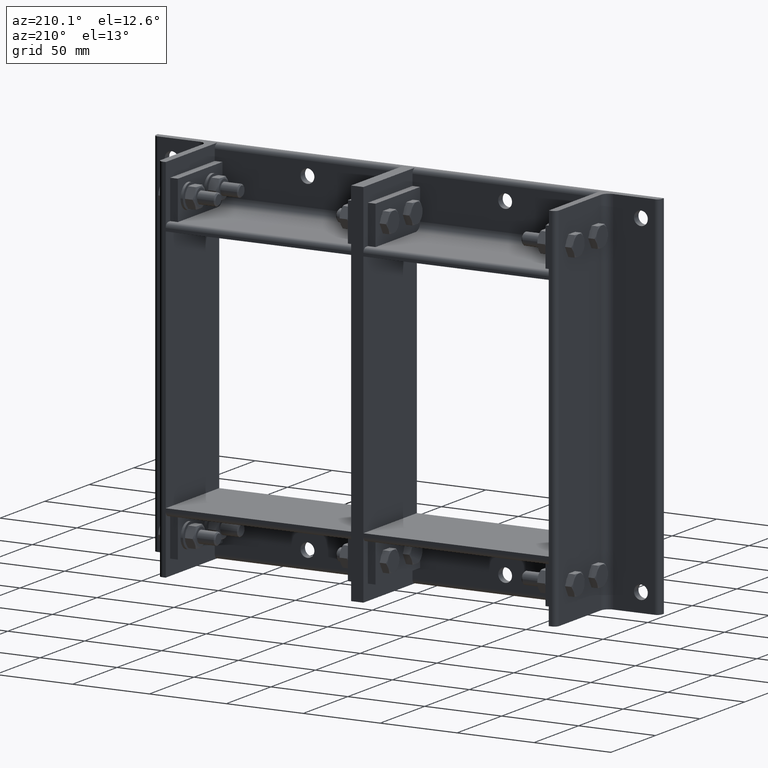
[diagram: clean part render]
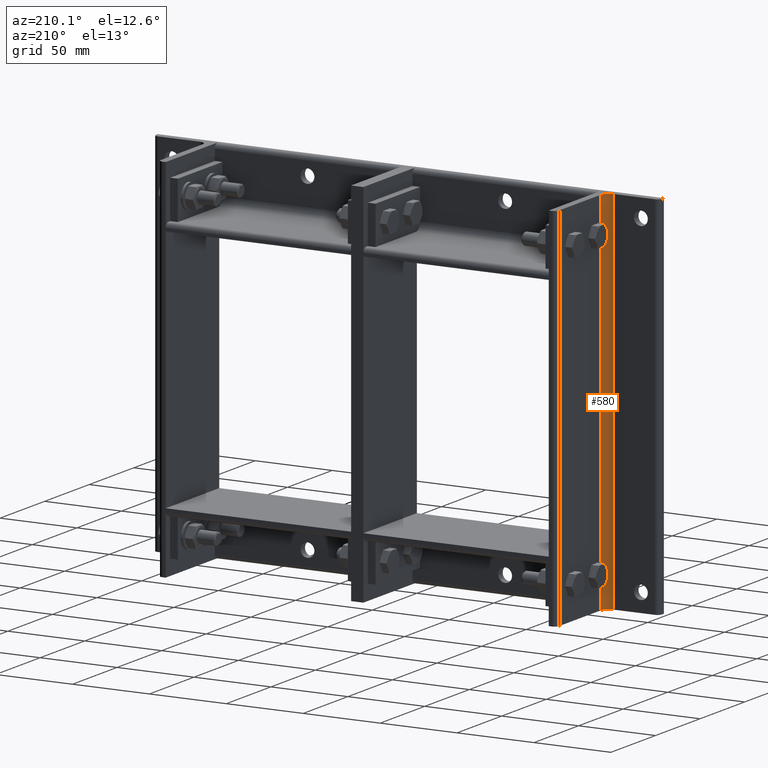
[diagram: same view with one face highlighted and labeled with its STEP entity id]
A machine part, auxiliary view. The second image highlights one B-rep face of the part: STEP entity #580.
In plain terms, the highlighted cylindrical surface (edge-blend (fillet) strip) has radius 5 mm, axis along (0, -0, -1).
Its self-contained STEP definition (entity closure, byte-faithful):
#362=CARTESIAN_POINT('',(9.999999999999991,4.999999999999996,0.0));
#363=VERTEX_POINT('',#362);
#370=CARTESIAN_POINT('',(9.999999999999991,4.999999999999996,239.50000000000003));
#371=VERTEX_POINT('',#370);
#372=CARTESIAN_POINT('',(9.999999999999993,4.999999999999996,239.50000000000003));
#373=DIRECTION('',(0.0,0.0,-1.0));
#374=VECTOR('',#373,239.50000000000003);
#375=LINE('',#372,#374);
#376=EDGE_CURVE('',#371,#363,#375,.T.);
#440=CARTESIAN_POINT('',(4.999999999999991,9.999999999999998,0.0));
#441=VERTEX_POINT('',#440);
#448=CARTESIAN_POINT('',(9.999999999999991,10.0,0.0));
#449=DIRECTION('',(0.0,0.0,-1.0));
#450=DIRECTION('',(-0.707106781186547,-0.707106781186548,0.0));
#451=AXIS2_PLACEMENT_3D('',#448,#449,#450);
#452=CIRCLE('',#451,5.0);
#453=EDGE_CURVE('',#363,#441,#452,.T.);
#498=CARTESIAN_POINT('',(4.999999999999991,9.999999999999998,239.50000000000003));
#499=VERTEX_POINT('',#498);
#500=CARTESIAN_POINT('',(9.999999999999991,10.0,239.50000000000003));
#501=DIRECTION('',(0.0,0.0,1.0));
#502=DIRECTION('',(-0.707106781186547,-0.707106781186548,0.0));
#503=AXIS2_PLACEMENT_3D('',#500,#501,#502);
#504=CIRCLE('',#503,5.0);
#505=EDGE_CURVE('',#499,#371,#504,.T.);
#564=CARTESIAN_POINT('',(9.999999999999991,10.0,0.0));
#565=DIRECTION('',(0.0,0.0,1.0));
#566=DIRECTION('',(-0.707106781186547,-0.707106781186548,0.0));
#567=AXIS2_PLACEMENT_3D('',#564,#565,#566);
#568=CYLINDRICAL_SURFACE('',#567,5.0);
#569=ORIENTED_EDGE('',*,*,#453,.T.);
#570=CARTESIAN_POINT('',(4.999999999999992,9.999999999999998,0.0));
#571=DIRECTION('',(0.0,0.0,1.0));
#572=VECTOR('',#571,239.50000000000003);
#573=LINE('',#570,#572);
#574=EDGE_CURVE('',#441,#499,#573,.T.);
#575=ORIENTED_EDGE('',*,*,#574,.T.);
#576=ORIENTED_EDGE('',*,*,#505,.T.);
#577=ORIENTED_EDGE('',*,*,#376,.T.);
#578=EDGE_LOOP('',(#569,#575,#576,#577));
#579=FACE_OUTER_BOUND('',#578,.T.);
#580=ADVANCED_FACE('',(#579),#568,.F.);